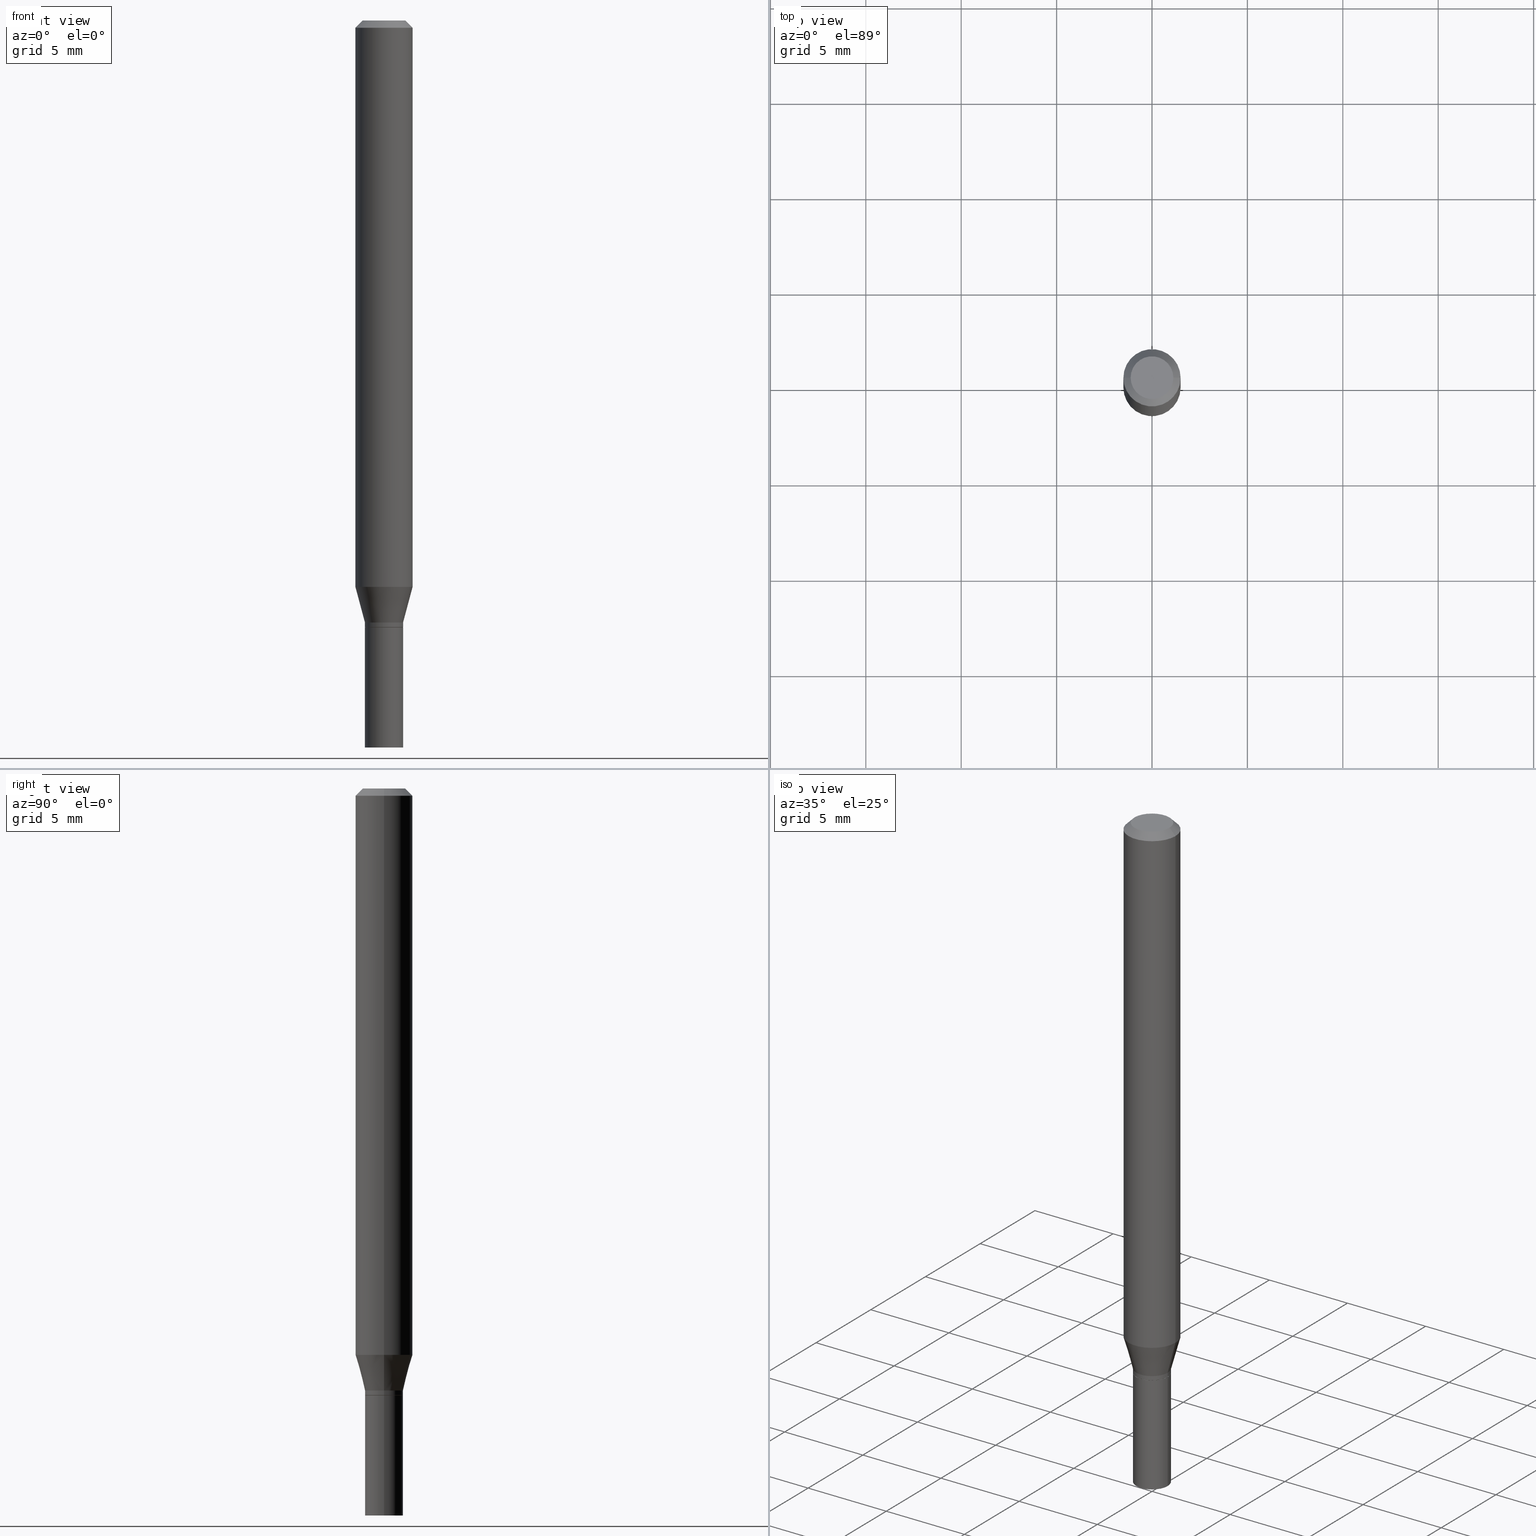
[diagram: canonical four-view strip — front | top / right | iso, engineering-drawing reading convention]
A machine part, canonical four-view strip (front | top / right | iso — engineering-drawing reading convention). The complete STEP part file that produces these views, byte-faithful:
ISO-10303-21;
HEADER;
FILE_DESCRIPTION (( 'STEP AP203' ),
    '1' );
FILE_NAME ('48758.STEP',
    '2024-03-12T19:45:10',
    ( '' ),
    ( '' ),
    'SwSTEP 2.0',
    'SolidWorks 2023',
    '' );
FILE_SCHEMA (( 'CONFIG_CONTROL_DESIGN' ));
ENDSEC;

DATA;
#1 = VERTEX_POINT ( 'NONE', #180 ) ;
#2 = DATE_AND_TIME ( #5, #273 ) ;
#3 = ORIENTED_EDGE ( 'NONE', *, *, #161, .F. ) ;
#4 = CIRCLE ( 'NONE', #404, 0.05904999999999999832 ) ;
#5 = CALENDAR_DATE ( 2024, 12, 3 ) ;
#6 = CARTESIAN_POINT ( 'NONE',  ( 3.037272257281939846E-29, -4.336419822843186836E-15, -1.241999999999999993 ) ) ;
#7 = CIRCLE ( 'NONE', #63, 0.03935000000000000303 ) ;
#8 = CYLINDRICAL_SURFACE ( 'NONE', #139, 0.03934999999999993364 ) ;
#9 = APPROVAL ( #141, 'UNSPECIFIED' ) ;
#10 = VERTEX_POINT ( 'NONE', #48 ) ;
#11 = CARTESIAN_POINT ( 'NONE',  ( 0.03934999999999993364, -4.611199404210140965E-15, -1.241999999999999993 ) ) ;
#12 = ADVANCED_FACE ( 'NONE', ( #151 ), #179, .F. ) ;
#13 = PERSON_AND_ORGANIZATION_ROLE ( 'creator' ) ;
#14 = ORIENTED_EDGE ( 'NONE', *, *, #362, .F. ) ;
#15 = MANIFOLD_SOLID_BREP ( 'Body-Move/Copy2[1]', #389 ) ;
#16 = ORIENTED_EDGE ( 'NONE', *, *, #164, .F. ) ;
#17 = PERSON ( 'UNSPECIFIED', 'UNSPECIFIED', 'UNSPECIFIED', ('UNSPECIFIED'), ('UNSPECIFIED'), ('UNSPECIFIED') ) ;
#18 = AXIS2_PLACEMENT_3D ( 'NONE', #449, #121, #261 ) ;
#19 = AXIS2_PLACEMENT_3D ( 'NONE', #66, #309, #408 ) ;
#20 = ORIENTED_EDGE ( 'NONE', *, *, #297, .F. ) ;
#21 = CARTESIAN_POINT ( 'NONE',  ( -0.03885000000000000259, -4.092639556214709577E-15, -1.252000000000000224 ) ) ;
#22 = MANIFOLD_SOLID_BREP ( 'Body-Move/Copy2[2]', #174 ) ;
#23 = DIRECTION ( 'NONE',  ( -2.445468806185136597E-29, 3.491481338843145583E-15, 1.000000000000000000 ) ) ;
#24 = CYLINDRICAL_SURFACE ( 'NONE', #351, 0.05905000000000000526 ) ;
#25 = CARTESIAN_POINT ( 'NONE',  ( -0.03934999999999992670, -4.089990329040599164E-15, -1.251500000000000279 ) ) ;
#26 = DIRECTION ( 'NONE',  ( 1.000000000000000000, -6.982962677686266711E-15, 4.876176775795936353E-29 ) ) ;
#27 = CIRCLE ( 'NONE', #330, 0.03934999999999992670 ) ;
#28 = PLANE ( 'NONE',  #19 ) ;
#29 = DIRECTION ( 'NONE',  ( -2.445468806185136877E-29, 3.491481338843145188E-15, 1.000000000000000000 ) ) ;
#30 = PERSON_AND_ORGANIZATION ( #17, #283 ) ;
#31 = CARTESIAN_POINT ( 'NONE',  ( -0.03935000000000000303, -4.524679755726570119E-15, -1.252000000000000224 ) ) ;
#32 = ADVANCED_FACE ( 'NONE', ( #53 ), #191, .F. ) ;
#33 = DATE_AND_TIME ( #67, #201 ) ;
#34 = ORIENTED_EDGE ( 'NONE', *, *, #138, .F. ) ;
#35 = AXIS2_PLACEMENT_3D ( 'NONE', #417, #253, #411 ) ;
#36 = VERTEX_POINT ( 'NONE', #21 ) ;
#37 = ORIENTED_EDGE ( 'NONE', *, *, #410, .T. ) ;
#38 = DIMENSIONAL_EXPONENTS ( 1.000000000000000000, 0.000000000000000000, 0.000000000000000000, 0.000000000000000000, 0.000000000000000000, 0.000000000000000000, 0.000000000000000000 ) ;
#39 = DESIGN_CONTEXT ( 'detailed design', #47, 'design' ) ;
#40 = VERTEX_POINT ( 'NONE', #453 ) ;
#41 = EDGE_CURVE ( 'NONE', #328, #170, #119, .T. ) ;
#42 = AXIS2_PLACEMENT_3D ( 'NONE', #275, #305, #126 ) ;
#43 = ORIENTED_EDGE ( 'NONE', *, *, #54, .F. ) ;
#44 = VECTOR ( 'NONE', #321, 39.37007874015748143 ) ;
#45 = CARTESIAN_POINT ( 'NONE',  ( 3.061726945343791391E-29, -4.371334636231619274E-15, -1.252000000000000224 ) ) ;
#46 = ORIENTED_EDGE ( 'NONE', *, *, #381, .T. ) ;
#47 = APPLICATION_CONTEXT ( 'configuration controlled 3d designs of mechanical parts and assemblies' ) ;
#48 = CARTESIAN_POINT ( 'NONE',  ( 0.03885000000000000259, -4.642622736259730395E-15, -1.252000000000000224 ) ) ;
#49 = ADVANCED_FACE ( 'NONE', ( #446 ), #185, .T. ) ;
#50 = CIRCLE ( 'NONE', #167, 0.05904999999999999832 ) ;
#51 = FACE_OUTER_BOUND ( 'NONE', #406, .T. ) ;
#52 = COORDINATED_UNIVERSAL_TIME_OFFSET ( 5, 0, .BEHIND. ) ;
#53 = FACE_OUTER_BOUND ( 'NONE', #122, .T. ) ;
#54 = EDGE_CURVE ( 'NONE', #10, #349, #376, .T. ) ;
#55 = AXIS2_PLACEMENT_3D ( 'NONE', #287, #110, #290 ) ;
#56 = LINE ( 'NONE', #125, #294 ) ;
#57 = CARTESIAN_POINT ( 'NONE',  ( -0.05905000000000002608, -1.646471236356701803E-15, -0.01499999999999999944 ) ) ;
#58 = CARTESIAN_POINT ( 'NONE',  ( 0.03885000000000000259, -4.642622736259730395E-15, -1.252000000000000224 ) ) ;
#59 = CARTESIAN_POINT ( 'NONE',  ( -8.641182519006289553E-45, 1.233731848647591164E-30, 3.533548453838711334E-16 ) ) ;
#60 = APPROVAL ( #260, 'UNSPECIFIED' ) ;
#61 = DIRECTION ( 'NONE',  ( 1.000000000000000000, -6.982962677686273021E-15, 0.000000000000000000 ) ) ;
#62 = DIRECTION ( 'NONE',  ( -2.445468806185136597E-29, 3.491481338843145583E-15, 1.000000000000000000 ) ) ;
#63 = AXIS2_PLACEMENT_3D ( 'NONE', #230, #375, #340 ) ;
#64 = CYLINDRICAL_SURFACE ( 'NONE', #35, 0.05905000000000000526 ) ;
#65 = CARTESIAN_POINT ( 'NONE',  ( -0.04404999999999999888, 3.337856159934041534E-16, 3.533548453838689148E-16 ) ) ;
#66 = CARTESIAN_POINT ( 'NONE',  ( 3.061726945343791391E-29, -4.371334636231619274E-15, -1.252000000000000224 ) ) ;
#67 = CALENDAR_DATE ( 2024, 12, 3 ) ;
#68 = PERSON_AND_ORGANIZATION_ROLE ( 'design_owner' ) ;
#69 = VERTEX_POINT ( 'NONE', #31 ) ;
#70 = PERSON_AND_ORGANIZATION ( #17, #283 ) ;
#71 = VECTOR ( 'NONE', #146, 39.37007874015748143 ) ;
#72 = ORIENTED_EDGE ( 'NONE', *, *, #307, .F. ) ;
#73 = VECTOR ( 'NONE', #196, 39.37007874015748143 ) ;
#74 =( NAMED_UNIT ( * ) SI_UNIT ( $, .STERADIAN. ) SOLID_ANGLE_UNIT ( ) );
#75 = DIRECTION ( 'NONE',  ( -2.445468806185136597E-29, 3.491481338843145583E-15, 1.000000000000000000 ) ) ;
#76 = ORIENTED_EDGE ( 'NONE', *, *, #348, .F. ) ;
#77 = EDGE_CURVE ( 'NONE', #1, #215, #268, .T. ) ;
#78 = EDGE_LOOP ( 'NONE', ( #393, #296, #218, #435 ) ) ;
#79 =( LENGTH_UNIT ( ) NAMED_UNIT ( * ) SI_UNIT ( $, .METRE. ) );
#80 = AXIS2_PLACEMENT_3D ( 'NONE', #45, #144, #148 ) ;
#81 = ORIENTED_EDGE ( 'NONE', *, *, #399, .T. ) ;
#82 = ADVANCED_FACE ( 'NONE', ( #109 ), #420, .T. ) ;
#83 = DIRECTION ( 'NONE',  ( -2.445468806185136877E-29, 3.491481338843145188E-15, 1.000000000000000000 ) ) ;
#84 = ORIENTED_EDGE ( 'NONE', *, *, #297, .T. ) ;
#85 = CARTESIAN_POINT ( 'NONE',  ( -0.05905000000000000526, 4.195754854663391971E-16, -2.904631170795522242E-30 ) ) ;
#86 = ORIENTED_EDGE ( 'NONE', *, *, #341, .T. ) ;
#87 = VERTEX_POINT ( 'NONE', #394 ) ;
#88 = VECTOR ( 'NONE', #106, 39.37007874015748143 ) ;
#89 = AXIS2_PLACEMENT_3D ( 'NONE', #6, #142, #465 ) ;
#90 = ORIENTED_EDGE ( 'NONE', *, *, #286, .T. ) ;
#91 = CC_DESIGN_DATE_AND_TIME_ASSIGNMENT ( #2, #282, ( #153 ) ) ;
#92 = ORIENTED_EDGE ( 'NONE', *, *, #204, .F. ) ;
#93 = DIRECTION ( 'NONE',  ( -2.438088387897960049E-29, 3.491481338843145188E-15, 1.000000000000000000 ) ) ;
#94 = DIRECTION ( 'NONE',  ( 1.000000000000000000, -6.982962677686269077E-15, 0.000000000000000000 ) ) ;
#95 = AXIS2_PLACEMENT_3D ( 'NONE', #136, #75, #355 ) ;
#96 = DIRECTION ( 'NONE',  ( -2.445468806185136597E-29, 3.491481338843145583E-15, 1.000000000000000000 ) ) ;
#97 = CARTESIAN_POINT ( 'NONE',  ( 0.03935000000000000303, -5.512001589631673094E-15, -1.500000000000000222 ) ) ;
#98 = DIRECTION ( 'NONE',  ( 1.000000000000000000, -6.982962677686269077E-15, 0.000000000000000000 ) ) ;
#99 = AXIS2_PLACEMENT_3D ( 'NONE', #59, #197, #342 ) ;
#100 = AXIS2_PLACEMENT_3D ( 'NONE', #346, #423, #383 ) ;
#101 = DIRECTION ( 'NONE',  ( -2.445468806185136597E-29, 3.491481338843145583E-15, 1.000000000000000000 ) ) ;
#102 = DIRECTION ( 'NONE',  ( 1.000000000000000000, -6.982962677686269077E-15, 0.000000000000000000 ) ) ;
#103 = ORIENTED_EDGE ( 'NONE', *, *, #337, .T. ) ;
#104 = CIRCLE ( 'NONE', #193, 0.03934999999999992670 ) ;
#105 = CIRCLE ( 'NONE', #246, 0.04404999999999999888 ) ;
#106 = DIRECTION ( 'NONE',  ( -0.7071067811865656694, 7.493145998870420424E-15, 0.7071067811865294761 ) ) ;
#107 = APPLICATION_PROTOCOL_DEFINITION ( 'international standard', 'config_control_design', 1994, #173 ) ;
#108 = ORIENTED_EDGE ( 'NONE', *, *, #164, .T. ) ;
#109 = FACE_OUTER_BOUND ( 'NONE', #371, .T. ) ;
#110 = DIRECTION ( 'NONE',  ( -2.445468806185136597E-29, 3.491481338843145583E-15, 1.000000000000000000 ) ) ;
#111 = COORDINATED_UNIVERSAL_TIME_OFFSET ( 5, 0, .BEHIND. ) ;
#112 = PERSON_AND_ORGANIZATION ( #17, #283 ) ;
#113 = CARTESIAN_POINT ( 'NONE',  ( 2.857477964771687293E-29, -4.079721223563434330E-15, -1.168478599090893244 ) ) ;
#114 = ORIENTED_EDGE ( 'NONE', *, *, #410, .F. ) ;
#115 = DIRECTION ( 'NONE',  ( -1.000000000000000000, 6.982962677686265922E-15, -4.876176775795935793E-29 ) ) ;
#116 = APPROVAL_ROLE ( '' ) ;
#117 = CARTESIAN_POINT ( 'NONE',  ( 3.668203209277704895E-29, -5.237222008264718177E-15, -1.500000000000000222 ) ) ;
#118 = ADVANCED_FACE ( 'NONE', ( #216 ), #459, .T. ) ;
#119 = CIRCLE ( 'NONE', #405, 0.03935000000000000303 ) ;
#120 = AXIS2_PLACEMENT_3D ( 'NONE', #194, #339, #187 ) ;
#121 = DIRECTION ( 'NONE',  ( 2.445468806185136597E-29, -3.491481338843145583E-15, -1.000000000000000000 ) ) ;
#122 = EDGE_LOOP ( 'NONE', ( #256, #361 ) ) ;
#123 = DIRECTION ( 'NONE',  ( -2.445468806185136877E-29, 3.491481338843145188E-15, 1.000000000000000000 ) ) ;
#124 = FACE_OUTER_BOUND ( 'NONE', #426, .T. ) ;
#125 = CARTESIAN_POINT ( 'NONE',  ( -0.03934999999999993364, 2.795985665215989516E-16, -1.935600958015302139E-30 ) ) ;
#126 = DIRECTION ( 'NONE',  ( 1.000000000000000000, -6.982962677686266711E-15, 4.876176775795935793E-29 ) ) ;
#127 = DIRECTION ( 'NONE',  ( -2.445468806185136597E-29, 3.491481338843145583E-15, 1.000000000000000000 ) ) ;
#128 = VERTEX_POINT ( 'NONE', #65 ) ;
#129 = DIRECTION ( 'NONE',  ( 1.000000000000000000, -6.982962677686267499E-15, 4.876176775795936353E-29 ) ) ;
#130 = CARTESIAN_POINT ( 'NONE',  ( 0.05904999999999999832, -4.492065169680809250E-15, -1.168478599090893244 ) ) ;
#131 = FACE_OUTER_BOUND ( 'NONE', #235, .T. ) ;
#132 = CARTESIAN_POINT ( 'NONE',  ( -0.03934999999999993364, -3.858483497209341928E-15, -1.241999999999999993 ) ) ;
#133 = AXIS2_PLACEMENT_3D ( 'NONE', #243, #387, #198 ) ;
#134 = CYLINDRICAL_SURFACE ( 'NONE', #42, 0.03934999999999993364 ) ;
#135 = APPROVAL_ROLE ( '' ) ;
#136 = CARTESIAN_POINT ( 'NONE',  ( 3.668203209277705088E-31, -5.237222008264718399E-17, -0.01499999999999999944 ) ) ;
#137 = CARTESIAN_POINT ( 'NONE',  ( 3.061726945343791391E-29, -4.371334636231619274E-15, -1.252000000000000224 ) ) ;
#138 = EDGE_CURVE ( 'NONE', #87, #414, #219, .T. ) ;
#139 = AXIS2_PLACEMENT_3D ( 'NONE', #317, #288, #284 ) ;
#140 = DIRECTION ( 'NONE',  ( 1.000000000000000000, -6.982962677686258033E-15, 0.000000000000000000 ) ) ;
#141 = APPROVAL_STATUS ( 'not_yet_approved' ) ;
#142 = DIRECTION ( 'NONE',  ( -2.445468806185136597E-29, 3.491481338843145583E-15, 1.000000000000000000 ) ) ;
#143 = VERTEX_POINT ( 'NONE', #130 ) ;
#144 = DIRECTION ( 'NONE',  ( -2.445468806185136597E-29, 3.491481338843145583E-15, 1.000000000000000000 ) ) ;
#145 = ADVANCED_FACE ( 'NONE', ( #234 ), #134, .T. ) ;
#146 = DIRECTION ( 'NONE',  ( -0.7071067811865396902, 2.468850131082174625E-15, -0.7071067811865553443 ) ) ;
#147 = LOCAL_TIME ( 15, 45, 10.00000000000000000, #52 ) ;
#148 = DIRECTION ( 'NONE',  ( 1.000000000000000000, -6.982962677686256455E-15, 0.000000000000000000 ) ) ;
#149 = AXIS2_PLACEMENT_3D ( 'NONE', #233, #310, #377 ) ;
#150 = ORIENTED_EDGE ( 'NONE', *, *, #466, .F. ) ;
#151 = FACE_OUTER_BOUND ( 'NONE', #319, .T. ) ;
#152 = FACE_OUTER_BOUND ( 'NONE', #455, .T. ) ;
#153 = PRODUCT_DEFINITION ( 'UNKNOWN', '', #415, #39 ) ;
#154 = CARTESIAN_POINT ( 'NONE',  ( 0.05905000000000001914, -4.574846268510562433E-16, -0.01499999999999999944 ) ) ;
#155 = APPROVAL_DATE_TIME ( #336, #60 ) ;
#156 = LINE ( 'NONE', #451, #217 ) ;
#157 = LOCAL_TIME ( 15, 45, 10.00000000000000000, #277 ) ;
#158 = AXIS2_PLACEMENT_3D ( 'NONE', #327, #441, #115 ) ;
#159 = DIRECTION ( 'NONE',  ( 1.000000000000000000, -6.982962677686269077E-15, 0.000000000000000000 ) ) ;
#160 = DIRECTION ( 'NONE',  ( -2.445468806185136597E-29, 3.491481338843145583E-15, 1.000000000000000000 ) ) ;
#161 = EDGE_CURVE ( 'NONE', #128, #365, #105, .T. ) ;
#162 = CARTESIAN_POINT ( 'NONE',  ( 0.000000000000000000, 0.000000000000000000, 0.000000000000000000 ) ) ;
#163 = CARTESIAN_POINT ( 'NONE',  ( 0.000000000000000000, 0.000000000000000000, 0.000000000000000000 ) ) ;
#164 = EDGE_CURVE ( 'NONE', #365, #128, #236, .T. ) ;
#165 = PERSON_AND_ORGANIZATION ( #17, #283 ) ;
#166 = CARTESIAN_POINT ( 'NONE',  ( -8.641182519006289553E-45, 1.233731848647591164E-30, 3.533548453838711334E-16 ) ) ;
#167 = AXIS2_PLACEMENT_3D ( 'NONE', #214, #160, #61 ) ;
#168 = ORIENTED_EDGE ( 'NONE', *, *, #348, .T. ) ;
#169 = ADVANCED_FACE ( 'NONE', ( #409 ), #24, .T. ) ;
#170 = VERTEX_POINT ( 'NONE', #97 ) ;
#171 = ORIENTED_EDGE ( 'NONE', *, *, #54, .T. ) ;
#172 = ORIENTED_EDGE ( 'NONE', *, *, #343, .F. ) ;
#173 = APPLICATION_CONTEXT ( 'configuration controlled 3d designs of mechanical parts and assemblies' ) ;
#174 = CLOSED_SHELL ( 'NONE', ( #145, #329, #295, #436, #232, #82, #169, #49, #12, #220, #208, #464 ) ) ;
#175 = CIRCLE ( 'NONE', #80, 0.03885000000000000259 ) ;
#176 = APPROVAL ( #460, 'UNSPECIFIED' ) ;
#177 = LINE ( 'NONE', #440, #71 ) ;
#178 = PRODUCT_DEFINITION_SHAPE ( 'NONE', 'NONE',  #153 ) ;
#179 = PLANE ( 'NONE',  #158 ) ;
#180 = CARTESIAN_POINT ( 'NONE',  ( -0.05904999999999999832, -3.660145738097095626E-15, -1.168478599090893244 ) ) ;
#181 = APPROVAL_PERSON_ORGANIZATION ( #443, #60, #116 ) ;
#182 = ORIENTED_EDGE ( 'NONE', *, *, #407, .F. ) ;
#183 = LINE ( 'NONE', #11, #44 ) ;
#184 = DATE_TIME_ROLE ( 'classification_date' ) ;
#185 = CONICAL_SURFACE ( 'NONE', #454, 0.05905000000000001914, 0.7853981633974372878 ) ;
#186 = CC_DESIGN_PERSON_AND_ORGANIZATION_ASSIGNMENT ( #165, #13, ( #415 ) ) ;
#187 = DIRECTION ( 'NONE',  ( 1.000000000000000000, -6.982962677686266711E-15, 4.876176775795936353E-29 ) ) ;
#188 = DATE_AND_TIME ( #403, #157 ) ;
#189 = CALENDAR_DATE ( 2024, 12, 3 ) ;
#190 = APPROVAL_DATE_TIME ( #188, #176 ) ;
#191 = PLANE ( 'NONE',  #430 ) ;
#192 = CARTESIAN_POINT ( 'NONE',  ( 3.037272257281939846E-29, -4.336419822843186836E-15, -1.241999999999999993 ) ) ;
#193 = AXIS2_PLACEMENT_3D ( 'NONE', #316, #433, #422 ) ;
#194 = CARTESIAN_POINT ( 'NONE',  ( 0.000000000000000000, 0.000000000000000000, 0.000000000000000000 ) ) ;
#195 = FACE_OUTER_BOUND ( 'NONE', #432, .T. ) ;
#196 = DIRECTION ( 'NONE',  ( 0.7071067811865656694, -2.468850131082446387E-15, 0.7071067811865294761 ) ) ;
#197 = DIRECTION ( 'NONE',  ( -2.445468806185136597E-29, 3.491481338843145583E-15, 1.000000000000000000 ) ) ;
#198 = DIRECTION ( 'NONE',  ( 1.000000000000000000, -6.982962677686256455E-15, 0.000000000000000000 ) ) ;
#199 = DIRECTION ( 'NONE',  ( 1.000000000000000000, -6.982962677686265922E-15, 4.819687581474398999E-29 ) ) ;
#200 = FACE_OUTER_BOUND ( 'NONE', #245, .T. ) ;
#201 = LOCAL_TIME ( 15, 45, 10.00000000000000000, #111 ) ;
#202 = CONICAL_SURFACE ( 'NONE', #370, 0.03885000000000000259, 0.7853981633974739252 ) ;
#203 = ORIENTED_EDGE ( 'NONE', *, *, #307, .T. ) ;
#204 = EDGE_CURVE ( 'NONE', #69, #40, #331, .T. ) ;
#205 = AXIS2_PLACEMENT_3D ( 'NONE', #192, #344, #98 ) ;
#206 = PERSON_AND_ORGANIZATION_ROLE ( 'classification_officer' ) ;
#207 = ORIENTED_EDGE ( 'NONE', *, *, #161, .T. ) ;
#208 = ADVANCED_FACE ( 'NONE', ( #195 ), #202, .T. ) ;
#209 = ORIENTED_EDGE ( 'NONE', *, *, #263, .T. ) ;
#210 = DIRECTION ( 'NONE',  ( -2.445468806185136597E-29, 3.491481338843145583E-15, 1.000000000000000000 ) ) ;
#211 = SECURITY_CLASSIFICATION_LEVEL ( 'unclassified' ) ;
#212 = ORIENTED_EDGE ( 'NONE', *, *, #343, .T. ) ;
#213 = ORIENTED_EDGE ( 'NONE', *, *, #286, .F. ) ;
#214 = CARTESIAN_POINT ( 'NONE',  ( 2.857477964771687293E-29, -4.079721223563434330E-15, -1.168478599090893244 ) ) ;
#215 = VERTEX_POINT ( 'NONE', #57 ) ;
#216 = FACE_OUTER_BOUND ( 'NONE', #78, .T. ) ;
#217 = VECTOR ( 'NONE', #123, 39.37007874015748143 ) ;
#218 = ORIENTED_EDGE ( 'NONE', *, *, #306, .F. ) ;
#219 = CIRCLE ( 'NONE', #100, 0.03934999999999993364 ) ;
#220 = ADVANCED_FACE ( 'NONE', ( #200 ), #28, .F. ) ;
#221 = PERSON_AND_ORGANIZATION_ROLE ( 'creator' ) ;
#222 = PERSON_AND_ORGANIZATION ( #17, #283 ) ;
#223 = LINE ( 'NONE', #364, #88 ) ;
#224 = ORIENTED_EDGE ( 'NONE', *, *, #461, .T. ) ;
#225 = CC_DESIGN_PERSON_AND_ORGANIZATION_ASSIGNMENT ( #112, #68, ( #252 ) ) ;
#226 = AXIS2_PLACEMENT_3D ( 'NONE', #163, #378, #352 ) ;
#227 = CONICAL_SURFACE ( 'NONE', #312, 0.03934999999999993364, 0.2617993877991502960 ) ;
#228 = ADVANCED_FACE ( 'NONE', ( #131 ), #272, .F. ) ;
#229 = CYLINDRICAL_SURFACE ( 'NONE', #120, 0.03935000000000000303 ) ;
#230 = CARTESIAN_POINT ( 'NONE',  ( 3.668203209277704895E-29, -5.237222008264718177E-15, -1.500000000000000222 ) ) ;
#231 = LOCAL_TIME ( 15, 45, 10.00000000000000000, #262 ) ;
#232 = ADVANCED_FACE ( 'NONE', ( #124 ), #227, .T. ) ;
#233 = CARTESIAN_POINT ( 'NONE',  ( 3.061726945343791391E-29, -4.371334636231619274E-15, -1.252000000000000224 ) ) ;
#234 = FACE_OUTER_BOUND ( 'NONE', #391, .T. ) ;
#235 = EDGE_LOOP ( 'NONE', ( #291, #315 ) ) ;
#236 = CIRCLE ( 'NONE', #99, 0.04404999999999999888 ) ;
#237 = CARTESIAN_POINT ( 'NONE',  ( 0.000000000000000000, 0.000000000000000000, 0.000000000000000000 ) ) ;
#238 = CONICAL_SURFACE ( 'NONE', #359, 0.03885000000000000259, 0.7853981633974739252 ) ;
#239 = EDGE_LOOP ( 'NONE', ( #213, #3, #212, #37 ) ) ;
#240 = DIRECTION ( 'NONE',  ( -1.000000000000000000, 6.982962677686265922E-15, -4.876176775795935793E-29 ) ) ;
#241 = DIRECTION ( 'NONE',  ( -2.445468806185136597E-29, 3.491481338843145583E-15, 1.000000000000000000 ) ) ;
#242 = EDGE_CURVE ( 'NONE', #170, #328, #7, .T. ) ;
#243 = CARTESIAN_POINT ( 'NONE',  ( 3.061726945343791391E-29, -4.371334636231619274E-15, -1.252000000000000224 ) ) ;
#244 = EDGE_LOOP ( 'NONE', ( #360, #209, #385, #114 ) ) ;
#245 = EDGE_LOOP ( 'NONE', ( #72, #356 ) ) ;
#246 = AXIS2_PLACEMENT_3D ( 'NONE', #166, #101, #199 ) ;
#247 = DIRECTION ( 'NONE',  ( -2.445468806185136877E-29, 3.491481338843145188E-15, 1.000000000000000000 ) ) ;
#248 = ORIENTED_EDGE ( 'NONE', *, *, #41, .T. ) ;
#249 = CC_DESIGN_PERSON_AND_ORGANIZATION_ASSIGNMENT ( #313, #221, ( #153 ) ) ;
#250 =( NAMED_UNIT ( * ) PLANE_ANGLE_UNIT ( ) SI_UNIT ( $, .RADIAN. ) );
#251 = VECTOR ( 'NONE', #83, 39.37007874015748143 ) ;
#252 = PRODUCT ( '48758', '48758', '', ( #322 ) ) ;
#253 = DIRECTION ( 'NONE',  ( -2.445468806185136597E-29, 3.491481338843145583E-15, 1.000000000000000000 ) ) ;
#254 = APPROVAL_DATE_TIME ( #33, #9 ) ;
#255 = LINE ( 'NONE', #400, #251 ) ;
#256 = ORIENTED_EDGE ( 'NONE', *, *, #242, .F. ) ;
#257 = EDGE_CURVE ( 'NONE', #328, #69, #353, .T. ) ;
#258 = DIRECTION ( 'NONE',  ( -1.000000000000000000, 6.982962677686266711E-15, 0.000000000000000000 ) ) ;
#259 = CIRCLE ( 'NONE', #205, 0.03934999999999993364 ) ;
#260 = APPROVAL_STATUS ( 'not_yet_approved' ) ;
#261 = DIRECTION ( 'NONE',  ( -1.000000000000000000, 6.982962677686266711E-15, 0.000000000000000000 ) ) ;
#262 = COORDINATED_UNIVERSAL_TIME_OFFSET ( 5, 0, .BEHIND. ) ;
#263 = EDGE_CURVE ( 'NONE', #1, #143, #50, .T. ) ;
#264 = CARTESIAN_POINT ( 'NONE',  ( 3.037272257281939846E-29, -4.336419822843186836E-15, -1.241999999999999993 ) ) ;
#265 = DIRECTION ( 'NONE',  ( -2.445468806185136877E-29, 3.491481338843145188E-15, 1.000000000000000000 ) ) ;
#266 = CARTESIAN_POINT ( 'NONE',  ( 3.061726945343791391E-29, -4.371334636231619274E-15, -1.252000000000000224 ) ) ;
#267 = VECTOR ( 'NONE', #457, 39.37007874015748143 ) ;
#268 = LINE ( 'NONE', #85, #299 ) ;
#269 = AXIS2_PLACEMENT_3D ( 'NONE', #416, #382, #240 ) ;
#270 = DIRECTION ( 'NONE',  ( 1.000000000000000000, -6.982962677686256455E-15, 0.000000000000000000 ) ) ;
#271 = LINE ( 'NONE', #413, #267 ) ;
#272 = PLANE ( 'NONE',  #269 ) ;
#273 = LOCAL_TIME ( 15, 45, 10.00000000000000000, #347 ) ;
#274 = EDGE_CURVE ( 'NONE', #170, #40, #156, .T. ) ;
#275 = CARTESIAN_POINT ( 'NONE',  ( 0.000000000000000000, 0.000000000000000000, 0.000000000000000000 ) ) ;
#276 = ADVANCED_FACE ( 'NONE', ( #51 ), #229, .T. ) ;
#277 = COORDINATED_UNIVERSAL_TIME_OFFSET ( 5, 0, .BEHIND. ) ;
#278 = DIRECTION ( 'NONE',  ( -2.445468806185136597E-29, 3.491481338843145583E-15, 1.000000000000000000 ) ) ;
#279 = DIRECTION ( 'NONE',  ( -2.445468806185136597E-29, 3.491481338843145583E-15, 1.000000000000000000 ) ) ;
#280 = ORIENTED_EDGE ( 'NONE', *, *, #399, .F. ) ;
#281 = ORIENTED_EDGE ( 'NONE', *, *, #257, .F. ) ;
#282 = DATE_TIME_ROLE ( 'creation_date' ) ;
#283 = ORGANIZATION ( 'UNSPECIFIED', 'UNSPECIFIED', '' ) ;
#284 = DIRECTION ( 'NONE',  ( 1.000000000000000000, -6.982962677686266711E-15, 4.876176775795935793E-29 ) ) ;
#285 = ORIENTED_EDGE ( 'NONE', *, *, #263, .F. ) ;
#286 = EDGE_CURVE ( 'NONE', #365, #324, #304, .T. ) ;
#287 = CARTESIAN_POINT ( 'NONE',  ( 3.668203209277705088E-31, -5.237222008264718399E-17, -0.01499999999999999944 ) ) ;
#288 = DIRECTION ( 'NONE',  ( -2.445468806185136597E-29, 3.491481338843145583E-15, 1.000000000000000000 ) ) ;
#289 = ORIENTED_EDGE ( 'NONE', *, *, #337, .F. ) ;
#290 = DIRECTION ( 'NONE',  ( 1.000000000000000000, -6.982962677686266711E-15, 0.000000000000000000 ) ) ;
#291 = ORIENTED_EDGE ( 'NONE', *, *, #306, .T. ) ;
#292 = DIRECTION ( 'NONE',  ( -2.445468806185136877E-29, 3.491481338843145188E-15, 1.000000000000000000 ) ) ;
#293 = CARTESIAN_POINT ( 'NONE',  ( 0.03934999999999993364, -2.747795813669541281E-16, 1.918775561275697570E-30 ) ) ;
#294 = VECTOR ( 'NONE', #265, 39.37007874015748143 ) ;
#295 = ADVANCED_FACE ( 'NONE', ( #335 ), #357, .T. ) ;
#296 = ORIENTED_EDGE ( 'NONE', *, *, #257, .T. ) ;
#297 = EDGE_CURVE ( 'NONE', #414, #87, #259, .T. ) ;
#298 = DIRECTION ( 'NONE',  ( -2.445468806185136597E-29, 3.491481338843145583E-15, 1.000000000000000000 ) ) ;
#299 = VECTOR ( 'NONE', #29, 39.37007874015748143 ) ;
#300 = AXIS2_PLACEMENT_3D ( 'NONE', #137, #278, #102 ) ;
#301 = DIRECTION ( 'NONE',  ( 1.000000000000000000, -6.982962677686265922E-15, 4.876176775795935793E-29 ) ) ;
#302 = ORIENTED_EDGE ( 'NONE', *, *, #77, .T. ) ;
#303 = CARTESIAN_POINT ( 'NONE',  ( 3.668203209277705088E-31, -5.237222008264718399E-17, -0.01499999999999999944 ) ) ;
#304 = LINE ( 'NONE', #154, #448 ) ;
#305 = DIRECTION ( 'NONE',  ( -2.445468806185136597E-29, 3.491481338843145583E-15, 1.000000000000000000 ) ) ;
#306 = EDGE_CURVE ( 'NONE', #40, #69, #323, .T. ) ;
#307 = EDGE_CURVE ( 'NONE', #10, #36, #380, .T. ) ;
#308 = CARTESIAN_POINT ( 'NONE',  ( 0.05905000000000001914, -4.647161662000214077E-16, -0.01499999999999999944 ) ) ;
#309 = DIRECTION ( 'NONE',  ( -2.438088387897960049E-29, 3.491481338843145188E-15, 1.000000000000000000 ) ) ;
#310 = DIRECTION ( 'NONE',  ( -2.445468806185136597E-29, 3.491481338843145583E-15, 1.000000000000000000 ) ) ;
#311 = APPLICATION_PROTOCOL_DEFINITION ( 'international standard', 'config_control_design', 1994, #47 ) ;
#312 = AXIS2_PLACEMENT_3D ( 'NONE', #264, #23, #94 ) ;
#313 = PERSON_AND_ORGANIZATION ( #17, #283 ) ;
#314 = PERSON_AND_ORGANIZATION_ROLE ( 'design_supplier' ) ;
#315 = ORIENTED_EDGE ( 'NONE', *, *, #204, .T. ) ;
#316 = CARTESIAN_POINT ( 'NONE',  ( 3.060504210940699150E-29, -4.369588895562197771E-15, -1.251500000000000279 ) ) ;
#317 = CARTESIAN_POINT ( 'NONE',  ( 0.000000000000000000, 0.000000000000000000, 0.000000000000000000 ) ) ;
#318 = CARTESIAN_POINT ( 'NONE',  ( 3.060504210940699150E-29, -4.369588895562197771E-15, -1.251500000000000279 ) ) ;
#319 = EDGE_LOOP ( 'NONE', ( #207, #108 ) ) ;
#320 = VERTEX_POINT ( 'NONE', #25 ) ;
#321 = DIRECTION ( 'NONE',  ( 0.2588190451025215721, 1.565188264969619995E-15, 0.9659258262890679791 ) ) ;
#322 = MECHANICAL_CONTEXT ( 'NONE', #173, 'mechanical' ) ;
#323 = CIRCLE ( 'NONE', #300, 0.03935000000000000303 ) ;
#324 = VERTEX_POINT ( 'NONE', #308 ) ;
#325 = LENGTH_MEASURE_WITH_UNIT ( LENGTH_MEASURE( 0.02539999999999999897 ), #79 );
#326 = ORIENTED_EDGE ( 'NONE', *, *, #407, .T. ) ;
#327 = CARTESIAN_POINT ( 'NONE',  ( 3.075995059520799729E-16, 0.04404999999999999888, 2.287766971589501637E-17 ) ) ;
#328 = VERTEX_POINT ( 'NONE', #396 ) ;
#329 = ADVANCED_FACE ( 'NONE', ( #152 ), #238, .T. ) ;
#330 = AXIS2_PLACEMENT_3D ( 'NONE', #318, #241, #140 ) ;
#331 = CIRCLE ( 'NONE', #149, 0.03935000000000000303 ) ;
#332 = LINE ( 'NONE', #293, #345 ) ;
#333 = CALENDAR_DATE ( 2024, 12, 3 ) ;
#334 = FACE_OUTER_BOUND ( 'NONE', #444, .T. ) ;
#335 = FACE_OUTER_BOUND ( 'NONE', #390, .T. ) ;
#336 = DATE_AND_TIME ( #189, #147 ) ;
#337 = EDGE_CURVE ( 'NONE', #87, #143, #183, .T. ) ;
#338 = CIRCLE ( 'NONE', #95, 0.05905000000000001914 ) ;
#339 = DIRECTION ( 'NONE',  ( -2.445468806185136597E-29, 3.491481338843145583E-15, 1.000000000000000000 ) ) ;
#340 = DIRECTION ( 'NONE',  ( 1.000000000000000000, -6.982962677686269077E-15, 0.000000000000000000 ) ) ;
#341 = EDGE_CURVE ( 'NONE', #36, #10, #175, .T. ) ;
#342 = DIRECTION ( 'NONE',  ( 1.000000000000000000, -6.982962677686265922E-15, 4.819687581474398999E-29 ) ) ;
#343 = EDGE_CURVE ( 'NONE', #128, #215, #177, .T. ) ;
#344 = DIRECTION ( 'NONE',  ( -2.445468806185136597E-29, 3.491481338843145583E-15, 1.000000000000000000 ) ) ;
#345 = VECTOR ( 'NONE', #292, 39.37007874015748143 ) ;
#346 = CARTESIAN_POINT ( 'NONE',  ( 3.037272257281939846E-29, -4.336419822843186836E-15, -1.241999999999999993 ) ) ;
#347 = COORDINATED_UNIVERSAL_TIME_OFFSET ( 5, 0, .BEHIND. ) ;
#348 = EDGE_CURVE ( 'NONE', #349, #87, #332, .T. ) ;
#349 = VERTEX_POINT ( 'NONE', #437 ) ;
#350 = CC_DESIGN_APPROVAL ( #176, ( #153 ) ) ;
#351 = AXIS2_PLACEMENT_3D ( 'NONE', #162, #96, #129 ) ;
#352 = DIRECTION ( 'NONE',  ( 1.000000000000000000, 0.000000000000000000, 0.000000000000000000 ) ) ;
#353 = LINE ( 'NONE', #425, #458 ) ;
#354 = CC_DESIGN_PERSON_AND_ORGANIZATION_ASSIGNMENT ( #70, #206, ( #438 ) ) ;
#355 = DIRECTION ( 'NONE',  ( 1.000000000000000000, -6.982962677686266711E-15, 0.000000000000000000 ) ) ;
#356 = ORIENTED_EDGE ( 'NONE', *, *, #341, .F. ) ;
#357 = CONICAL_SURFACE ( 'NONE', #18, 0.05905000000000001914, 0.7853981633974372878 ) ;
#358 = ORIENTED_EDGE ( 'NONE', *, *, #363, .F. ) ;
#359 = AXIS2_PLACEMENT_3D ( 'NONE', #463, #279, #428 ) ;
#360 = ORIENTED_EDGE ( 'NONE', *, *, #77, .F. ) ;
#361 = ORIENTED_EDGE ( 'NONE', *, *, #41, .F. ) ;
#362 = EDGE_CURVE ( 'NONE', #143, #324, #255, .T. ) ;
#363 = EDGE_CURVE ( 'NONE', #36, #320, #223, .T. ) ;
#364 = CARTESIAN_POINT ( 'NONE',  ( -0.03885000000000000259, -4.095288783388819989E-15, -1.252000000000000224 ) ) ;
#365 = VERTEX_POINT ( 'NONE', #401 ) ;
#366 = ADVANCED_BREP_SHAPE_REPRESENTATION ( '48758', ( #15, #22, #226 ), #427 ) ;
#367 = DATE_AND_TIME ( #333, #231 ) ;
#368 = ORIENTED_EDGE ( 'NONE', *, *, #461, .F. ) ;
#369 = CIRCLE ( 'NONE', #55, 0.05905000000000001914 ) ;
#370 = AXIS2_PLACEMENT_3D ( 'NONE', #266, #62, #270 ) ;
#371 = EDGE_LOOP ( 'NONE', ( #402, #84, #103, #285 ) ) ;
#372 = PRODUCT_RELATED_PRODUCT_CATEGORY ( 'detail', '', ( #252 ) ) ;
#373 = CARTESIAN_POINT ( 'NONE',  ( 3.576687321579069994E-29, -5.368277968210015545E-15, -1.500000000000000222 ) ) ;
#374 = CC_DESIGN_APPROVAL ( #9, ( #415 ) ) ;
#375 = DIRECTION ( 'NONE',  ( -2.445468806185136597E-29, 3.491481338843145583E-15, 1.000000000000000000 ) ) ;
#376 = LINE ( 'NONE', #58, #73 ) ;
#377 = DIRECTION ( 'NONE',  ( 1.000000000000000000, -6.982962677686269077E-15, 0.000000000000000000 ) ) ;
#378 = DIRECTION ( 'NONE',  ( 0.000000000000000000, 0.000000000000000000, 1.000000000000000000 ) ) ;
#379 = ORIENTED_EDGE ( 'NONE', *, *, #412, .F. ) ;
#380 = CIRCLE ( 'NONE', #133, 0.03885000000000000259 ) ;
#381 = EDGE_CURVE ( 'NONE', #414, #1, #271, .T. ) ;
#382 = DIRECTION ( 'NONE',  ( 2.438088387897960049E-29, -3.491481338843145188E-15, -1.000000000000000000 ) ) ;
#383 = DIRECTION ( 'NONE',  ( 1.000000000000000000, -6.982962677686269077E-15, 0.000000000000000000 ) ) ;
#384 = UNCERTAINTY_MEASURE_WITH_UNIT (LENGTH_MEASURE( 1.000000000000000082E-05 ), #431, 'distance_accuracy_value', 'NONE');
#385 = ORIENTED_EDGE ( 'NONE', *, *, #362, .T. ) ;
#386 = CC_DESIGN_PERSON_AND_ORGANIZATION_ASSIGNMENT ( #222, #314, ( #415 ) ) ;
#387 = DIRECTION ( 'NONE',  ( -2.445468806185136597E-29, 3.491481338843145583E-15, 1.000000000000000000 ) ) ;
#388 = APPROVAL_PERSON_ORGANIZATION ( #456, #176, #135 ) ;
#389 = CLOSED_SHELL ( 'NONE', ( #118, #32, #276, #228 ) ) ;
#390 = EDGE_LOOP ( 'NONE', ( #16, #90, #81, #172 ) ) ;
#391 = EDGE_LOOP ( 'NONE', ( #424, #224, #34, #76 ) ) ;
#392 = FACE_OUTER_BOUND ( 'NONE', #462, .T. ) ;
#393 = ORIENTED_EDGE ( 'NONE', *, *, #242, .T. ) ;
#394 = CARTESIAN_POINT ( 'NONE',  ( 0.03934999999999993364, -4.611199404210140965E-15, -1.241999999999999993 ) ) ;
#395 = DIRECTION ( 'NONE',  ( 1.000000000000000000, -6.982962677686273021E-15, 0.000000000000000000 ) ) ;
#396 = CARTESIAN_POINT ( 'NONE',  ( -0.03935000000000000303, -4.524679755726570119E-15, -1.500000000000000222 ) ) ;
#397 = ORIENTED_EDGE ( 'NONE', *, *, #363, .T. ) ;
#398 = APPROVAL_PERSON_ORGANIZATION ( #30, #9, #419 ) ;
#399 = EDGE_CURVE ( 'NONE', #324, #215, #338, .T. ) ;
#400 = CARTESIAN_POINT ( 'NONE',  ( 0.05905000000000000526, -4.123439461173741313E-16, 2.879382386107500571E-30 ) ) ;
#401 = CARTESIAN_POINT ( 'NONE',  ( 0.04404999999999999888, -3.798447818264455642E-16, 3.533548453838735986E-16 ) ) ;
#402 = ORIENTED_EDGE ( 'NONE', *, *, #381, .F. ) ;
#403 = CALENDAR_DATE ( 2024, 12, 3 ) ;
#404 = AXIS2_PLACEMENT_3D ( 'NONE', #113, #210, #395 ) ;
#405 = AXIS2_PLACEMENT_3D ( 'NONE', #117, #298, #159 ) ;
#406 = EDGE_LOOP ( 'NONE', ( #281, #248, #421, #92 ) ) ;
#407 = EDGE_CURVE ( 'NONE', #320, #349, #27, .T. ) ;
#408 = DIRECTION ( 'NONE',  ( 1.000000000000000000, -6.982962677686265922E-15, 4.876176775795935793E-29 ) ) ;
#409 = FACE_OUTER_BOUND ( 'NONE', #244, .T. ) ;
#410 = EDGE_CURVE ( 'NONE', #215, #324, #369, .T. ) ;
#411 = DIRECTION ( 'NONE',  ( 1.000000000000000000, -6.982962677686267499E-15, 4.876176775795936353E-29 ) ) ;
#412 = EDGE_CURVE ( 'NONE', #349, #320, #104, .T. ) ;
#413 = CARTESIAN_POINT ( 'NONE',  ( -0.03934999999999993364, -4.056821256321588230E-15, -1.241999999999999993 ) ) ;
#414 = VERTEX_POINT ( 'NONE', #132 ) ;
#415 = PRODUCT_DEFINITION_FORMATION_WITH_SPECIFIED_SOURCE ( 'ANY', '', #252, .NOT_KNOWN. ) ;
#416 = CARTESIAN_POINT ( 'NONE',  ( 2.747795813669852388E-16, 0.03934999999999563153, -1.252000000000000446 ) ) ;
#417 = CARTESIAN_POINT ( 'NONE',  ( 0.000000000000000000, 0.000000000000000000, 0.000000000000000000 ) ) ;
#418 = CC_DESIGN_SECURITY_CLASSIFICATION ( #438, ( #415 ) ) ;
#419 = APPROVAL_ROLE ( '' ) ;
#420 = CONICAL_SURFACE ( 'NONE', #89, 0.03934999999999993364, 0.2617993877991502960 ) ;
#421 = ORIENTED_EDGE ( 'NONE', *, *, #274, .T. ) ;
#422 = DIRECTION ( 'NONE',  ( 1.000000000000000000, -6.982962677686258033E-15, 0.000000000000000000 ) ) ;
#423 = DIRECTION ( 'NONE',  ( -2.445468806185136597E-29, 3.491481338843145583E-15, 1.000000000000000000 ) ) ;
#424 = ORIENTED_EDGE ( 'NONE', *, *, #412, .T. ) ;
#425 = CARTESIAN_POINT ( 'NONE',  ( -0.03935000000000000303, 2.795985665215994447E-16, -1.935600958015305291E-30 ) ) ;
#426 = EDGE_LOOP ( 'NONE', ( #439, #46, #150, #289 ) ) ;
#427 =( GEOMETRIC_REPRESENTATION_CONTEXT ( 3 ) GLOBAL_UNCERTAINTY_ASSIGNED_CONTEXT ( ( #384 ) ) GLOBAL_UNIT_ASSIGNED_CONTEXT ( ( #431, #250, #74 ) ) REPRESENTATION_CONTEXT ( 'NONE', 'WORKASPACE' ) );
#428 = DIRECTION ( 'NONE',  ( 1.000000000000000000, -6.982962677686256455E-15, 0.000000000000000000 ) ) ;
#429 = CC_DESIGN_APPROVAL ( #60, ( #438 ) ) ;
#430 = AXIS2_PLACEMENT_3D ( 'NONE', #373, #93, #301 ) ;
#431 =( CONVERSION_BASED_UNIT ( 'INCH', #325 ) LENGTH_UNIT ( ) NAMED_UNIT ( #38 ) );
#432 = EDGE_LOOP ( 'NONE', ( #358, #86, #171, #182 ) ) ;
#433 = DIRECTION ( 'NONE',  ( -2.445468806185136597E-29, 3.491481338843145583E-15, 1.000000000000000000 ) ) ;
#434 = CC_DESIGN_DATE_AND_TIME_ASSIGNMENT ( #367, #184, ( #438 ) ) ;
#435 = ORIENTED_EDGE ( 'NONE', *, *, #274, .F. ) ;
#436 = ADVANCED_FACE ( 'NONE', ( #334 ), #64, .T. ) ;
#437 = CARTESIAN_POINT ( 'NONE',  ( 0.03934999999999992670, -4.644368476929151899E-15, -1.251500000000000279 ) ) ;
#438 = SECURITY_CLASSIFICATION ( '', '', #211 ) ;
#439 = ORIENTED_EDGE ( 'NONE', *, *, #138, .T. ) ;
#440 = CARTESIAN_POINT ( 'NONE',  ( -0.05905000000000001914, 3.599717260347269535E-16, -0.01499999999999999944 ) ) ;
#441 = DIRECTION ( 'NONE',  ( 2.438088387897960049E-29, -3.491481338843145188E-15, -1.000000000000000000 ) ) ;
#442 = DIRECTION ( 'NONE',  ( 0.7071067811865396902, -7.319954787623229224E-15, -0.7071067811865553443 ) ) ;
#443 = PERSON_AND_ORGANIZATION ( #17, #283 ) ;
#444 = EDGE_LOOP ( 'NONE', ( #450, #302, #280, #14 ) ) ;
#445 = SHAPE_DEFINITION_REPRESENTATION ( #178, #366 ) ;
#446 = FACE_OUTER_BOUND ( 'NONE', #239, .T. ) ;
#447 = AXIS2_PLACEMENT_3D ( 'NONE', #237, #127, #26 ) ;
#448 = VECTOR ( 'NONE', #442, 39.37007874015748143 ) ;
#449 = CARTESIAN_POINT ( 'NONE',  ( 3.668203209277705088E-31, -5.237222008264718399E-17, -0.01499999999999999944 ) ) ;
#450 = ORIENTED_EDGE ( 'NONE', *, *, #466, .T. ) ;
#451 = CARTESIAN_POINT ( 'NONE',  ( 0.03935000000000000303, -2.747795813669546211E-16, 1.918775561275701074E-30 ) ) ;
#452 = DIRECTION ( 'NONE',  ( 2.445468806185136597E-29, -3.491481338843145583E-15, -1.000000000000000000 ) ) ;
#453 = CARTESIAN_POINT ( 'NONE',  ( 0.03935000000000000303, -4.646114217598574191E-15, -1.252000000000000224 ) ) ;
#454 = AXIS2_PLACEMENT_3D ( 'NONE', #303, #452, #258 ) ;
#455 = EDGE_LOOP ( 'NONE', ( #203, #397, #379, #43 ) ) ;
#456 = PERSON_AND_ORGANIZATION ( #17, #283 ) ;
#457 = DIRECTION ( 'NONE',  ( -0.2588190451025215721, 5.211531920934551831E-15, 0.9659258262890679791 ) ) ;
#458 = VECTOR ( 'NONE', #247, 39.37007874015748143 ) ;
#459 = CYLINDRICAL_SURFACE ( 'NONE', #447, 0.03935000000000000303 ) ;
#460 = APPROVAL_STATUS ( 'not_yet_approved' ) ;
#461 = EDGE_CURVE ( 'NONE', #320, #414, #56, .T. ) ;
#462 = EDGE_LOOP ( 'NONE', ( #368, #326, #168, #20 ) ) ;
#463 = CARTESIAN_POINT ( 'NONE',  ( 3.061726945343791391E-29, -4.371334636231619274E-15, -1.252000000000000224 ) ) ;
#464 = ADVANCED_FACE ( 'NONE', ( #392 ), #8, .T. ) ;
#465 = DIRECTION ( 'NONE',  ( 1.000000000000000000, -6.982962677686269077E-15, 0.000000000000000000 ) ) ;
#466 = EDGE_CURVE ( 'NONE', #143, #1, #4, .T. ) ;
ENDSEC;
END-ISO-10303-21;
